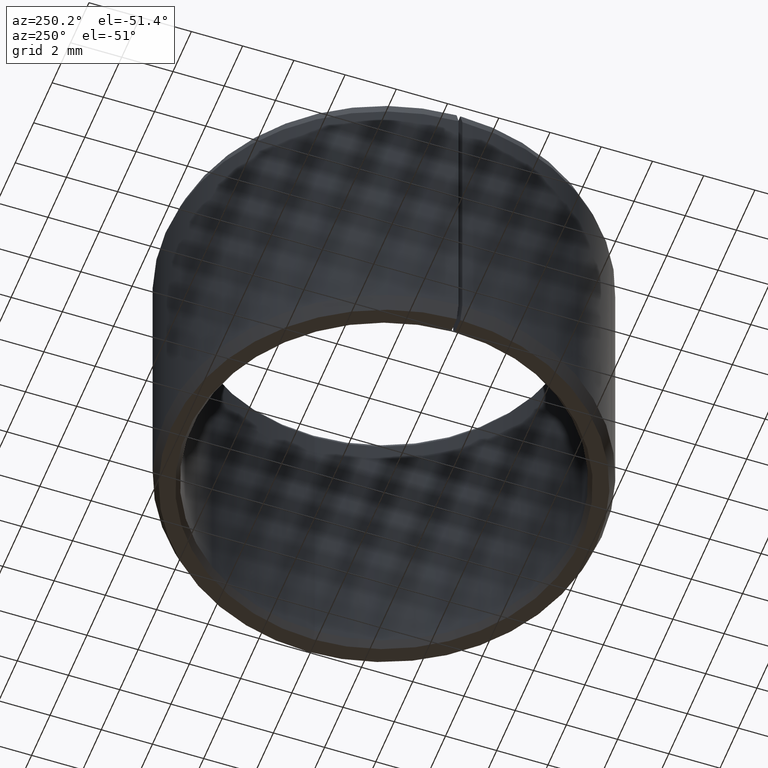
[diagram: clean part render]
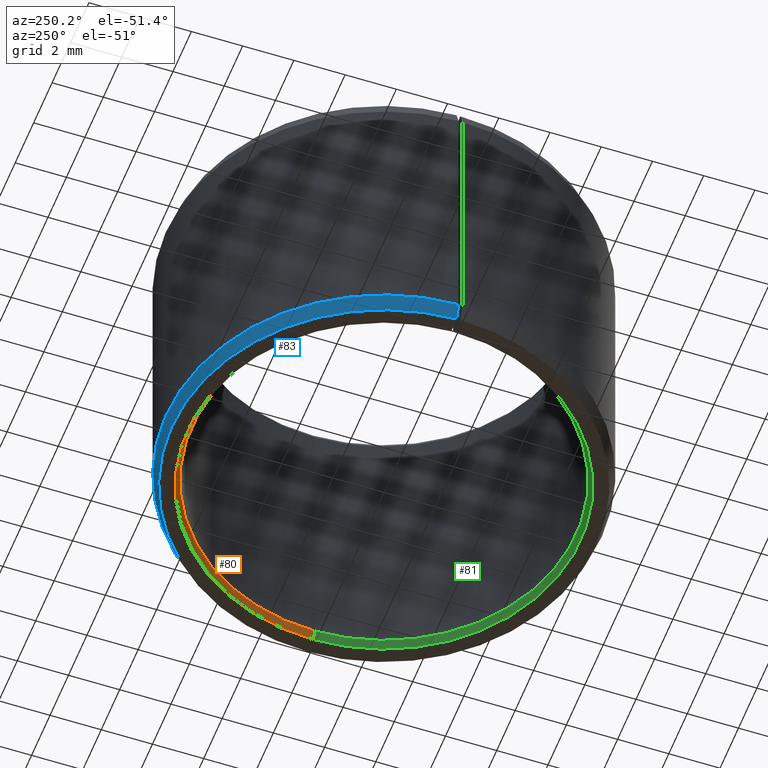
[diagram: same view with three faces highlighted in distinct colors, each labeled with its STEP entity id]
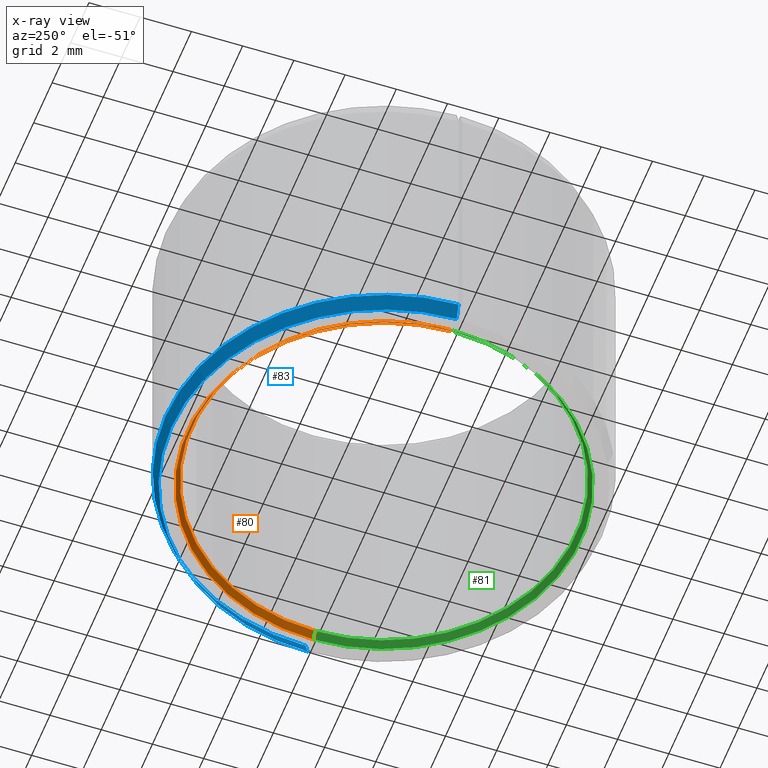
[diagram: x-ray of the same camera — body ghosted, the three highlighted faces saturated]
A machine part, auxiliary view with three faces highlighted in distinct colors.
The next image is the same camera in x-ray (body ghosted, the three faces saturated) — at least one of them is partly hidden behind the body in this view.
Their STEP definitions:

[orange] entity #80 — the highlighted conical surface has half-angle 30 deg.
#80=ADVANCED_FACE('',(#102),#103,.F.);
#102=FACE_OUTER_BOUND('',#134,.T.);
#103=CONICAL_SURFACE('',#135,7.58660254037844,0.523598775598301);
#134=EDGE_LOOP('',(#191,#192,#193,#194));
#135=AXIS2_PLACEMENT_3D('',#195,#196,#197);
#191=ORIENTED_EDGE('',*,*,#297,.F.);
#192=ORIENTED_EDGE('',*,*,#283,.T.);
#193=ORIENTED_EDGE('',*,*,#298,.T.);
#194=ORIENTED_EDGE('',*,*,#299,.F.);
#195=CARTESIAN_POINT('',(4.35610017907595E-016,-8.41247610334811E-016,0.150000000000003));
#196=DIRECTION('',(-5.48707263966375E-016,6.09939603923743E-016,-1.0));
#197=DIRECTION('',(-1.0,1.89882151931499E-015,5.48707263966376E-016));
#283=EDGE_CURVE('',#319,#323,#325,.T.);
#297=EDGE_CURVE('',#319,#349,#350,.T.);
#298=EDGE_CURVE('',#323,#351,#352,.T.);
#299=EDGE_CURVE('',#349,#351,#353,.T.);
#319=VERTEX_POINT('',#381);
#323=VERTEX_POINT('',#386);
#325=CIRCLE('',#389,7.5);
#349=VERTEX_POINT('',#421);
#350=LINE('',#422,#423);
#351=VERTEX_POINT('',#424);
#352=LINE('',#425,#426);
#353=CIRCLE('',#427,7.67320508075689);
#381=CARTESIAN_POINT('',(7.5,-1.60923850451463E-014,0.299999999999998));
#386=CARTESIAN_POINT('',(-7.49885771367294,0.130893048279642,0.300000000000006));
#389=AXIS2_PLACEMENT_3D('',#469,#470,#471);
#421=CARTESIAN_POINT('',(7.67320508075689,-1.62595002033395E-014,-2.82256458493356E-015));
#422=CARTESIAN_POINT('',(7.58660254037844,-1.61759426242429E-014,0.149999999999999));
#423=VECTOR('',#495,1.0);
#424=CARTESIAN_POINT('',(-7.67203641445709,0.133915893746014,5.68766574006386E-015));
#425=CARTESIAN_POINT('',(-7.49885771367294,0.130893048279642,0.300000000000006));
#426=VECTOR('',#496,9.99999999999999);
#427=AXIS2_PLACEMENT_3D('',#497,#498,#499);
#469=CARTESIAN_POINT('',(5.1791610750255E-016,-9.23553699929767E-016,0.300000000000002));
#470=DIRECTION('',(5.48707263966375E-016,-6.09939603923743E-016,1.0));
#471=DIRECTION('',(-1.0,1.89882151931499E-015,5.48707263966376E-016));
#495=DIRECTION('',(0.500000000000002,-4.82419907842685E-016,-0.866025403784438));
#496=DIRECTION('',(-0.499923847578198,0.00872620321864331,-0.866025403784437));
#497=CARTESIAN_POINT('',(3.53303928312638E-016,-7.58941520739854E-016,1.40055521273414E-015));
#498=DIRECTION('',(5.48707263966375E-016,-6.09939603923743E-016,1.0));
#499=DIRECTION('',(-1.0,1.89882151931499E-015,5.48707263966376E-016));

[blue] entity #83 — the highlighted conical surface has half-angle 20 deg.
#83=ADVANCED_FACE('',(#108),#109,.T.);
#108=FACE_OUTER_BOUND('',#140,.T.);
#109=CONICAL_SURFACE('',#141,8.39080892972014,0.349065850398867);
#140=EDGE_LOOP('',(#214,#215,#216,#217));
#141=AXIS2_PLACEMENT_3D('',#218,#219,#220);
#214=ORIENTED_EDGE('',*,*,#294,.T.);
#215=ORIENTED_EDGE('',*,*,#304,.T.);
#216=ORIENTED_EDGE('',*,*,#306,.T.);
#217=ORIENTED_EDGE('',*,*,#307,.F.);
#218=CARTESIAN_POINT('',(5.1791610750255E-016,-9.23553699929767E-016,0.300000000000002));
#219=DIRECTION('',(5.48707263966375E-016,-6.09939603923743E-016,1.0));
#220=DIRECTION('',(-1.0,1.89882151931499E-015,5.48707263966376E-016));
#294=EDGE_CURVE('',#339,#344,#345,.T.);
#304=EDGE_CURVE('',#344,#359,#361,.T.);
#306=EDGE_CURVE('',#359,#363,#364,.T.);
#307=EDGE_CURVE('',#339,#363,#365,.T.);
#339=VERTEX_POINT('',#407);
#344=VERTEX_POINT('',#414);
#345=LINE('',#415,#416);
#359=VERTEX_POINT('',#434);
#361=CIRCLE('',#437,8.28161785944028);
#363=VERTEX_POINT('',#440);
#364=LINE('',#441,#442);
#365=CIRCLE('',#443,8.5);
#407=CARTESIAN_POINT('',(8.5,-1.82874682745595E-014,0.599999999999997));
#414=CARTESIAN_POINT('',(8.28161785944028,-1.74800917053337E-014,-3.1564050960871E-015));
#415=CARTESIAN_POINT('',(8.39080892972014,-1.78837799899466E-014,0.299999999999997));
#416=VECTOR('',#490,1.0);
#434=CARTESIAN_POINT('',(-8.28035652892737,0.144534160841234,6.02793190731697E-015));
#437=AXIS2_PLACEMENT_3D('',#508,#509,#510);
#440=CARTESIAN_POINT('',(-8.49870540882933,0.148345454716927,0.600000000000007));
#441=CARTESIAN_POINT('',(-8.28035652892737,0.144534160841234,5.5316195743465E-015));
#442=VECTOR('',#512,10.0);
#443=AXIS2_PLACEMENT_3D('',#513,#514,#515);
#490=DIRECTION('',(-0.342020143325671,1.26447634049497E-015,-0.939692620785908));
#508=CARTESIAN_POINT('',(3.53303928312638E-016,-7.58941520739854E-016,1.40055521273414E-015));
#509=DIRECTION('',(5.48707263966375E-016,-6.09939603923743E-016,1.0));
#510=DIRECTION('',(-1.0,1.89882151931499E-015,5.48707263966376E-016));
#512=DIRECTION('',(-0.34196805200123,0.00596907455105776,0.939692620785908));
#513=CARTESIAN_POINT('',(6.82528286692463E-016,-1.08816587911968E-015,0.600000000000002));
#514=DIRECTION('',(5.48707263966375E-016,-6.09939603923743E-016,1.0));
#515=DIRECTION('',(-1.0,1.89882151931499E-015,5.48707263966376E-016));

[green] entity #81 — the highlighted conical surface has half-angle 30 deg.
#81=ADVANCED_FACE('',(#104),#105,.F.);
#104=FACE_OUTER_BOUND('',#136,.T.);
#105=CONICAL_SURFACE('',#137,7.58660254037844,0.523598775598301);
#136=EDGE_LOOP('',(#198,#199,#200,#201));
#137=AXIS2_PLACEMENT_3D('',#202,#203,#204);
#198=ORIENTED_EDGE('',*,*,#297,.T.);
#199=ORIENTED_EDGE('',*,*,#300,.F.);
#200=ORIENTED_EDGE('',*,*,#301,.F.);
#201=ORIENTED_EDGE('',*,*,#302,.T.);
#202=CARTESIAN_POINT('',(4.35610017907595E-016,-8.41247610334811E-016,0.150000000000003));
#203=DIRECTION('',(-5.48707263966375E-016,6.09939603923743E-016,-1.0));
#204=DIRECTION('',(-1.0,1.89882151931499E-015,5.48707263966376E-016));
#297=EDGE_CURVE('',#319,#349,#350,.T.);
#300=EDGE_CURVE('',#354,#349,#355,.T.);
#301=EDGE_CURVE('',#356,#354,#357,.T.);
#302=EDGE_CURVE('',#356,#319,#358,.T.);
#319=VERTEX_POINT('',#381);
#349=VERTEX_POINT('',#421);
#350=LINE('',#422,#423);
#354=VERTEX_POINT('',#428);
#355=CIRCLE('',#429,7.67320508075689);
#356=VERTEX_POINT('',#430);
#357=LINE('',#431,#432);
#358=CIRCLE('',#433,7.5);
#381=CARTESIAN_POINT('',(7.5,-1.60923850451463E-014,0.299999999999998));
#421=CARTESIAN_POINT('',(7.67320508075689,-1.62595002033395E-014,-2.82256458493356E-015));
#422=CARTESIAN_POINT('',(7.58660254037844,-1.61759426242429E-014,0.149999999999999));
#423=VECTOR('',#495,1.0);
#428=CARTESIAN_POINT('',(-7.67320508075689,1.43745616238207E-014,6.32175589905178E-015));
#429=AXIS2_PLACEMENT_3D('',#500,#501,#502);
#430=CARTESIAN_POINT('',(-7.5,1.39685881698775E-014,0.300000000000006));
#431=CARTESIAN_POINT('',(-7.5,1.39685881698775E-014,0.300000000000006));
#432=VECTOR('',#503,9.99999999999999);
#433=AXIS2_PLACEMENT_3D('',#504,#505,#506);
#495=DIRECTION('',(0.500000000000002,-4.82419907842685E-016,-0.866025403784438));
#500=CARTESIAN_POINT('',(3.53303928312638E-016,-7.58941520739854E-016,1.40055521273414E-015));
#501=DIRECTION('',(5.48707263966375E-016,-6.09939603923743E-016,1.0));
#502=DIRECTION('',(-1.0,1.89882151931499E-015,5.48707263966376E-016));
#503=DIRECTION('',(-0.500000000000002,1.42460518949343E-015,-0.866025403784437));
#504=CARTESIAN_POINT('',(5.1791610750255E-016,-9.23553699929767E-016,0.300000000000002));
#505=DIRECTION('',(5.48707263966375E-016,-6.09939603923743E-016,1.0));
#506=DIRECTION('',(-1.0,1.89882151931499E-015,5.48707263966376E-016));